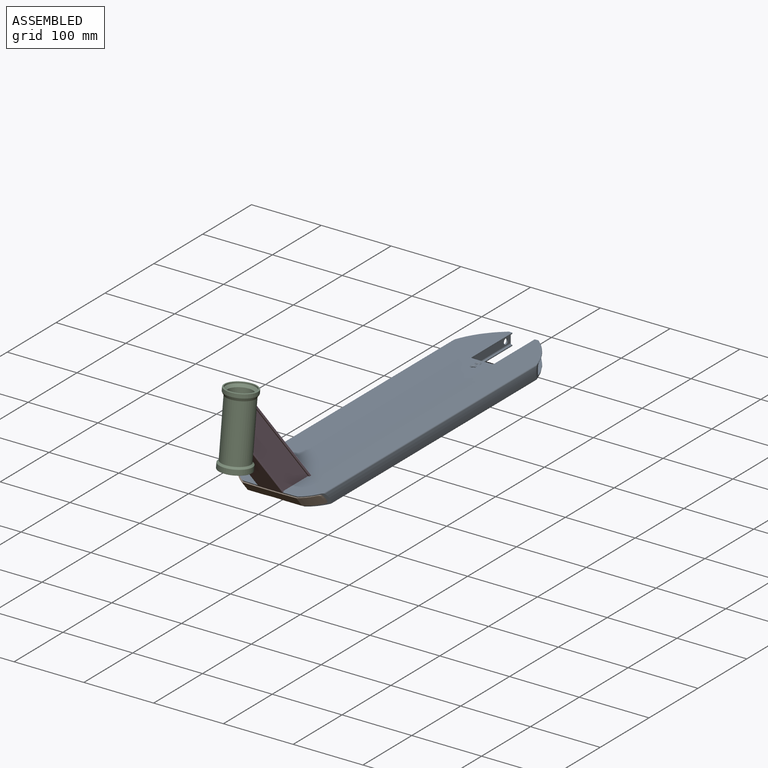
[diagram: assembled view]
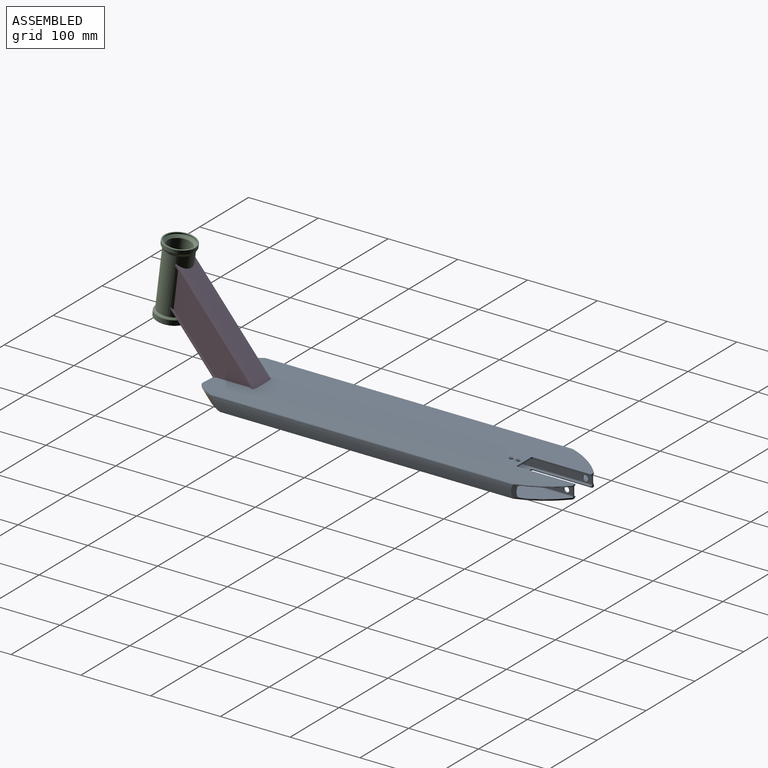
[diagram: assembled view, second angle]
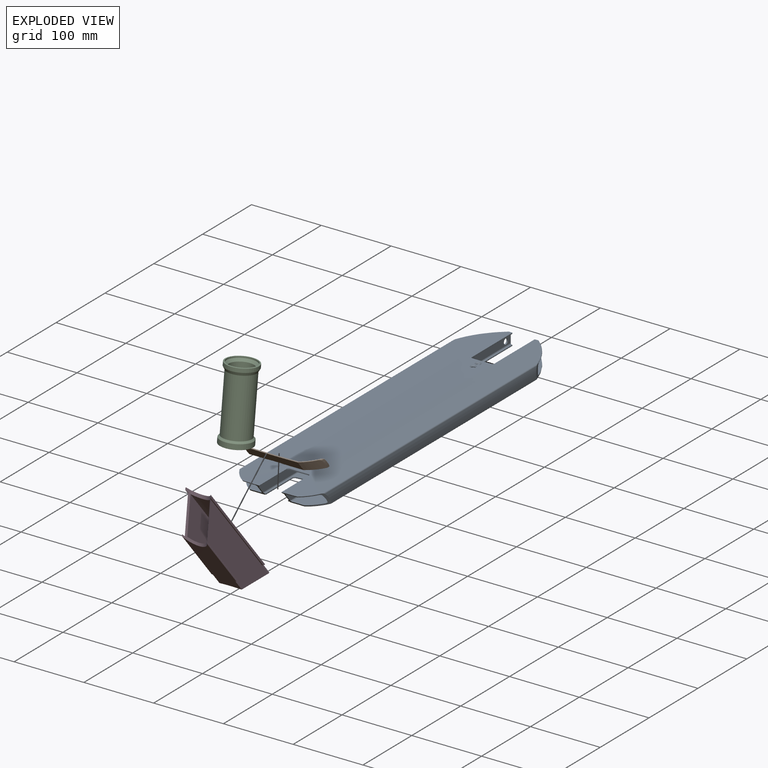
[diagram: exploded view]
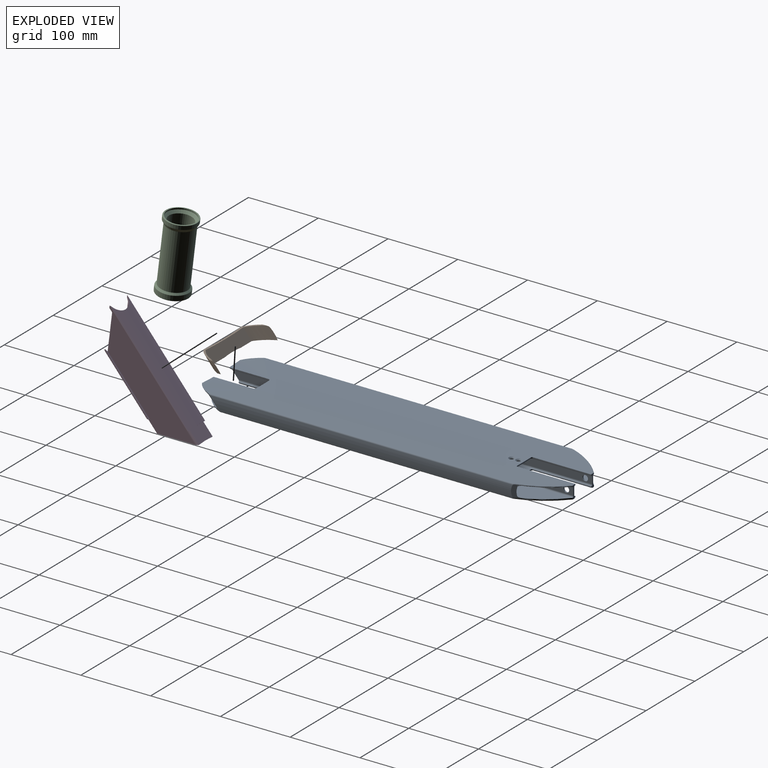
[diagram: exploded view, second angle]
ASSEMBLY  parts=4 mates=3
PART A: 131 faces, bbox 141.6x529.4x45.6 mm
  f0: cylinder r=1000mm len=519.03mm, axis (0,1,0), area 53666.5mm2, adj f15,f16,f20,f43,f44,f65,f70,f72
  f1: cylinder r=1000mm len=517.24mm, axis (0,1,0), area 12252.5mm2, adj f20,f31,f32,f43,f44,f72,f75,f76
  f2: plane 503.22x40.65mm, normal (0,0,-1), area 19366.3mm2, adj f12,f20,f37,f46,f66,f79
  f3: cylinder r=60mm len=433.91mm, axis (0,1,0), area 7414.6mm2, adj f7,f15,f63,f78
  f4: cylinder r=1000mm len=517.6mm, axis (0,1,0), area 16674.2mm2, adj f13,f29,f48,f77,f78
  f5: cylinder r=60mm len=441.59mm, axis (0,1,0), area 5329.7mm2, adj f13,f14,f48,f78
  f6: plane 506.7x35.9mm, normal (0,0,1), area 16455mm2, adj f14,f30,f48,f77,f78
  f7: cylinder r=1mm len=421.07mm, axis (0,1,0), area 596mm2, adj f3,f19,f62,f78
  f8: cylinder r=1000mm len=517.6mm, axis (0,1,0), area 16674.2mm2, adj f18,f20,f35,f47,f79
  f9: plane 506.7x35.9mm, normal (0,0,1), area 16455mm2, adj f17,f20,f36,f47,f79
  f10: cylinder r=60mm len=433.91mm, axis (0,1,0), area 7414.6mm2, adj f12,f16,f68,f79
  f11: cylinder r=60mm len=441.59mm, axis (0,1,0), area 5329.7mm2, adj f17,f18,f47,f79
  f12: cylinder r=1mm len=421.07mm, axis (0,1,0), area 596mm2, adj f2,f10,f67,f79
  f13: cylinder r=2mm len=452.4mm, axis (0,1,0), area 1357.3mm2, adj f4,f5,f48,f78
  f14: cylinder r=2mm len=438.34mm, axis (0,1,0), area 1283.1mm2, adj f5,f6,f48,f78
  f15: cylinder r=2mm len=442.52mm, axis (0,-1,0), area 1307.3mm2, adj f0,f3,f64,f78
  f16: cylinder r=2mm len=442.52mm, axis (0,-1,0), area 1307.3mm2, adj f0,f10,f69,f79
  f17: cylinder r=2mm len=438.34mm, axis (0,1,0), area 1283.1mm2, adj f9,f11,f47,f79
  f18: cylinder r=2mm len=452.4mm, axis (0,1,0), area 1357.3mm2, adj f8,f11,f47,f79
  f19: plane 503.22x40.65mm, normal (0,0,-1), area 19366.3mm2, adj f7,f40,f45,f61,f77,f78
  f20: plane 23.81x19.77mm, normal (0,-0.77,-0.64), area 159.8mm2, adj f0,f1,f2,f8,f9,f21,f22,f23
  f21: cylinder r=200mm len=504.2mm, axis (0,1,0), area 13155.5mm2, adj f20,f38,f39,f41,f42,f45,f46,f71
  f22: cylinder r=200mm len=505.36mm, axis (0,1,0), area 11783.7mm2, adj f20,f33,f34,f41,f42,f71,f73,f74
  f23: plane 515.66x10.45mm, normal (-1,0,0), area 5290.1mm2, adj f20,f35,f36,f56,f81
  f24: plane 503.67x0.04mm, normal (1,0,0), area 21.5mm2, adj f20,f37,f38,f46
  f25: plane 503.67x0.04mm, normal (-1,0,0), area 21.5mm2, adj f39,f40,f45,f77
  f26: plane 515.56x10.19mm, normal (1,0,0), area 5157.3mm2, adj f20,f31,f34,f56,f123
  f27: plane 515.56x10.18mm, normal (-1,0,0), area 5153.4mm2, adj f32,f33,f55,f77,f106
  f28: plane 515.66x10.45mm, normal (1,0,0), area 5290.1mm2, adj f29,f30,f55,f77,f88
  f29: cylinder r=2mm len=517.34mm, axis (0,1,0), area 1600.2mm2, adj f4,f28,f48,f77,f92
  f30: cylinder r=2mm len=506.89mm, axis (0,-1,0), area 1589.1mm2, adj f6,f28,f48,f77,f85
  f31: cylinder r=2mm len=517.24mm, axis (0,1,0), area 1639.2mm2, adj f1,f20,f26,f125
  f32: cylinder r=2mm len=517.24mm, axis (0,1,0), area 1639.2mm2, adj f1,f27,f77,f111
  f33: cylinder r=2mm len=507.02mm, axis (0,1,0), area 1672mm2, adj f22,f27,f77,f101
  f34: cylinder r=2mm len=507.02mm, axis (0,1,0), area 1672.5mm2, adj f20,f22,f26,f121
  f35: cylinder r=2mm len=517.34mm, axis (0,1,0), area 1600.2mm2, adj f8,f20,f23,f47,f82
  f36: cylinder r=2mm len=506.89mm, axis (0,-1,0), area 1589.1mm2, adj f9,f20,f23,f47,f80
  f37: cylinder r=0.5mm len=503.64mm, axis (0,1,0), area 395.4mm2, adj f2,f20,f24,f46
  f38: cylinder r=0.5mm len=504.09mm, axis (0,1,0), area 373.6mm2, adj f20,f21,f24,f46
  f39: cylinder r=0.5mm len=504.09mm, axis (0,1,0), area 373.6mm2, adj f21,f25,f45,f77
  f40: cylinder r=0.5mm len=503.64mm, axis (0,-1,0), area 395.4mm2, adj f19,f25,f45,f77
  f41: plane 55.14x1.5mm, normal (1,0,0), area 81.5mm2, adj f20,f21,f22,f74
  f42: plane 55.15x1.5mm, normal (-1,0,0), area 81.9mm2, adj f21,f22,f73,f77
  f43: plane 56.27x1.5mm, normal (1,0,0), area 83.6mm2, adj f0,f1,f20,f76
  f44: plane 56.27x1.5mm, normal (-1,0,0), area 83.6mm2, adj f0,f1,f75,f77
  f45: plane 18.71x6.3mm, normal (0,1,0), area 49.5mm2, adj f19,f21,f25,f39,f40,f48,f61,f85
  f46: plane 18.71x6.4mm, normal (0,1,0), area 49.6mm2, adj f2,f21,f24,f37,f38,f47,f53,f66
  f47: cylinder r=125mm len=60.89mm, axis (0,0,-1), area 247.9mm2, adj f8,f9,f11,f17,f18,f35,f36,f46
  f48: cylinder r=125mm len=60.89mm, axis (0,0,-1), area 247.9mm2, adj f4,f5,f6,f13,f14,f29,f30,f45
  f49: plane 28x1.79mm, normal (0,1,0), area 36.4mm2, adj f57,f58,f99,f105
  f50: plane 82.9x1.29mm, normal (1,0,0), area 107.3mm2, adj f57,f109,f113,f114
  f51: plane 82.9x1.3mm, normal (-1,0,0), area 108mm2, adj f58,f87,f90,f95
  f52: plane 82.9x1.3mm, normal (-1,0,0), area 108mm2, adj f60,f108,f116,f120
  f53: plane 83x1.3mm, normal (1,0,0), area 108.1mm2, adj f46,f59,f86,f89,f128
  f54: plane 28x1.4mm, normal (0,1,0), area 36.5mm2, adj f59,f60,f98,f124
  f55: cylinder r=4mm len=8mm, axis (1,0,0), area 50.3mm2, adj f27,f28
  f56: cylinder r=4mm len=8mm, axis (1,0,0), area 50.3mm2, adj f23,f26
  f57: cylinder r=2mm len=2mm, axis (0,0,1), area 4.1mm2, adj f49,f50,f104,f110
  f58: cylinder r=2mm len=2mm, axis (0,0,-1), area 4.1mm2, adj f49,f51,f94,f100
  f59: cylinder r=2mm len=2mm, axis (0,0,1), area 4.1mm2, adj f53,f54,f93,f126
  f60: cylinder r=2mm len=2mm, axis (0,0,-1), area 4.1mm2, adj f52,f54,f103,f122
  f61: torus R=124mm, axis (0,0,1), area 111.8mm2, adj f19,f45,f48,f62
  f62: sphere r=1mm, area 0.3mm2, adj f7,f61,f63
  f63: bspline ~21.61x3.57mm, area 5.2mm2, adj f3,f48,f62,f64
  f64: bspline ~4.42x2.54mm, area 4.2mm2, adj f15,f48,f63,f65
  f65: bspline ~75.38x48.93mm, area 109.3mm2, adj f0,f48,f64,f102
  f66: torus R=124mm, axis (0,0,-1), area 111.8mm2, adj f2,f46,f47,f67
  f67: sphere r=1mm, area 0.3mm2, adj f12,f66,f68
  f68: bspline ~21.61x3.58mm, area 5.2mm2, adj f10,f47,f67,f69
  f69: bspline ~4.41x2.54mm, area 4.2mm2, adj f16,f47,f68,f70
  f70: bspline ~75.38x48.93mm, area 109.3mm2, adj f0,f47,f69,f84
  f71: plane 26x1.92mm, normal (0,-1,0), area 39mm2, adj f21,f22,f73,f74
  f72: plane 26x1.59mm, normal (0,-1,0), area 39.1mm2, adj f0,f1,f75,f76
  f73: cylinder r=3mm len=3mm, axis (0,0,-1), area 7.1mm2, adj f21,f22,f42,f71
  f74: cylinder r=3mm len=3mm, axis (0,0,1), area 7mm2, adj f21,f22,f41,f71
  f75: cylinder r=3mm len=3mm, axis (0,0,-1), area 7.1mm2, adj f0,f1,f44,f72
  f76: cylinder r=3mm len=3mm, axis (0,0,1), area 7.1mm2, adj f0,f1,f43,f72
  f77: plane 23.81x19.77mm, normal (0,-0.77,-0.64), area 159.8mm2, adj f0,f1,f4,f6,f19,f21,f22,f25
  f78: cylinder r=50mm len=43.95mm, axis (0,0.64,-0.77), area 217.1mm2, adj f0,f3,f4,f5,f6,f7,f13,f14
  f79: cylinder r=50mm len=43.95mm, axis (0,0.64,-0.77), area 217.1mm2, adj f0,f2,f8,f9,f10,f11,f12,f16
  f80: torus R=2.1mm, axis (0,-1,0), area 0.5mm2, adj f36,f46,f47,f81
  f81: cylinder r=0.1mm len=10.45mm, axis (0,0,-1), area 1.6mm2, adj f23,f46,f80,f82
  f82: torus R=2.1mm, axis (0,-1,0), area 0.5mm2, adj f35,f46,f47,f81,f83
  f83: cylinder r=0.1mm len=0.47mm, axis (0,0,-1), area 0mm2, adj f46,f47,f82,f84
  f84: bspline ~1.97x1.03mm, area 0.2mm2, adj f46,f70,f83,f86
  f85: torus R=2.1mm, axis (0,-1,0), area 0.5mm2, adj f30,f45,f48,f88
  f86: torus R=1000.1mm, axis (0,-1,0), area 0.7mm2, adj f0,f46,f53,f84,f89
  f87: cylinder r=0.1mm len=1.4mm, axis (0,0,-1), area 0.2mm2, adj f21,f45,f51,f90,f91
  f88: cylinder r=0.1mm len=10.45mm, axis (0,0,1), area 1.6mm2, adj f28,f45,f85,f92
  f89: cylinder r=0.1mm len=83mm, axis (0,1,0), area 12.9mm2, adj f0,f53,f86,f93
  f90: cylinder r=0.1mm len=83mm, axis (0,1,0), area 12.4mm2, adj f21,f51,f87,f94
  f91: sphere r=0.1mm, area 0mm2, adj f87,f95,f96
  f92: torus R=2.1mm, axis (0,-1,0), area 0.5mm2, adj f29,f45,f48,f88,f97
  f93: bspline ~2.57x2.57mm, area 0.5mm2, adj f0,f59,f89,f98
  f94: bspline ~2.57x2.22mm, area 0.5mm2, adj f21,f58,f90,f99
  f95: cylinder r=0.1mm len=82.9mm, axis (0,1,0), area 13.7mm2, adj f22,f51,f91,f100
  f96: torus R=199.9mm, axis (0,-1,0), area 0mm2, adj f22,f45,f91,f101
  f97: cylinder r=0.1mm len=0.47mm, axis (0,0,-1), area 0mm2, adj f45,f48,f92,f102
  f98: torus R=1000.1mm, axis (0,1,0), area 4.4mm2, adj f0,f54,f93,f103
  f99: torus R=200.1mm, axis (0,1,0), area 4.4mm2, adj f21,f49,f94,f104
  f100: bspline ~2.57x2.57mm, area 0.5mm2, adj f22,f58,f95,f105
  f101: torus R=2.1mm, axis (0,-1,0), area 0.5mm2, adj f33,f45,f96,f106
  f102: bspline ~1.6x1.16mm, area 0.2mm2, adj f45,f65,f97,f107
  f103: bspline ~2.57x2.57mm, area 0.5mm2, adj f0,f60,f98,f108
  f104: bspline ~2.57x2.57mm, area 0.5mm2, adj f21,f57,f99,f109
  f105: torus R=199.9mm, axis (0,1,0), area 4.4mm2, adj f22,f49,f100,f110
  f106: cylinder r=0.1mm len=10.18mm, axis (0,0,-1), area 1.6mm2, adj f27,f45,f101,f111
  f107: torus R=1000.1mm, axis (0,-1,0), area 0.7mm2, adj f0,f45,f102,f112
  f108: cylinder r=0.1mm len=82.9mm, axis (0,1,0), area 12.9mm2, adj f0,f52,f103,f112
  f109: cylinder r=0.1mm len=83mm, axis (0,1,0), area 12.4mm2, adj f21,f50,f104,f113
  f110: bspline ~2.57x2.57mm, area 0.5mm2, adj f22,f57,f105,f114
  f111: torus R=2.1mm, axis (0,-1,0), area 0.5mm2, adj f32,f45,f106,f115
  f112: sphere r=0.1mm, area 0mm2, adj f107,f108,f116
  f113: cylinder r=0.1mm len=1.4mm, axis (0,0,1), area 0.2mm2, adj f21,f46,f50,f109,f117
  f114: cylinder r=0.1mm len=82.9mm, axis (0,1,0), area 13.7mm2, adj f22,f50,f110,f117
  f115: torus R=999.9mm, axis (0,-1,0), area 0mm2, adj f1,f45,f111,f118
  f116: cylinder r=0.1mm len=1.3mm, axis (0,0,-1), area 0.2mm2, adj f45,f52,f112,f118
  f117: sphere r=0.1mm, area 0mm2, adj f113,f114,f119
  f118: sphere r=0.1mm, area 0mm2, adj f115,f116,f120
  f119: torus R=199.9mm, axis (0,-1,0), area 0mm2, adj f22,f46,f117,f121
  f120: cylinder r=0.1mm len=82.9mm, axis (0,1,0), area 13.2mm2, adj f1,f52,f118,f122
  f121: torus R=2.1mm, axis (0,-1,0), area 0.5mm2, adj f34,f46,f119,f123
  f122: bspline ~2.57x2.22mm, area 0.5mm2, adj f1,f60,f120,f124
  f123: cylinder r=0.1mm len=10.19mm, axis (0,0,1), area 1.6mm2, adj f26,f46,f121,f125
  f124: torus R=999.9mm, axis (0,1,0), area 4.4mm2, adj f1,f54,f122,f126
  f125: torus R=2.1mm, axis (0,-1,0), area 0.5mm2, adj f31,f46,f123,f127
  f126: bspline ~2.57x2.57mm, area 0.5mm2, adj f1,f59,f124,f128
  f127: torus R=999.9mm, axis (0,-1,0), area 0mm2, adj f1,f46,f125,f128
  f128: cylinder r=0.1mm len=83mm, axis (0,1,0), area 13.2mm2, adj f1,f46,f53,f126,f127
  f129: bspline ~8.2x8.19mm, area 44.8mm2, adj f0,f1
  f130: bspline ~8.2x8.19mm, area 44.8mm2, adj f0,f1
PART B: 15 faces, bbox 117x39x38.3 mm
  f0: cylinder r=60mm len=16.01mm, axis (0,1,0), area 69.5mm2, adj f1,f6,f11,f14
  f1: plane 42x26.13mm, normal (0,0,1), area 130.5mm2, adj f0,f2,f6,f7,f10,f11
  f2: cylinder r=200mm len=32mm, axis (0,1,0), area 83.6mm2, adj f1,f3,f7,f8,f10
  f3: plane 42x26.13mm, normal (0,0,1), area 130.9mm2, adj f2,f4,f8,f9,f10,f12
  f4: cylinder r=60mm len=16mm, axis (0,1,0), area 69.5mm2, adj f3,f9,f12,f13
  f5: cylinder r=1000mm len=112.23mm, axis (0,1,0), area 327mm2, adj f6,f7,f8,f9,f10,f11,f12,f13
  f6: cylinder r=50mm len=38.28mm, axis (0,-0.64,-0.77), area 539.1mm2, adj f0,f1,f5,f7,f14
  f7: plane 38.5x14.57mm, normal (0,0.77,-0.64), area 698.5mm2, adj f1,f2,f5,f6,f8
  f8: plane 38.53x14.55mm, normal (0,0.77,-0.64), area 697.9mm2, adj f2,f3,f5,f7,f9
  f9: cylinder r=50mm len=38.24mm, axis (0,-0.64,-0.77), area 538mm2, adj f3,f4,f5,f8,f13
  f10: plane 78x14.63mm, normal (0,-0.77,0.64), area 1414.8mm2, adj f1,f2,f3,f5,f11,f12
  f11: cylinder r=50mm len=35.85mm, axis (0,-0.64,-0.77), area 505.6mm2, adj f0,f1,f5,f10,f14
  f12: cylinder r=50mm len=35.83mm, axis (0,-0.64,-0.77), area 505.3mm2, adj f3,f4,f5,f10,f13
  f13: cylinder r=2mm len=10.26mm, axis (0,-1,0), area 14.9mm2, adj f4,f5,f9,f12
  f14: cylinder r=2mm len=10.25mm, axis (0,-1,0), area 14.9mm2, adj f0,f5,f6,f11
PART C: 18 faces, bbox 48.7x48.7x102 mm
  f0: cylinder r=20mm len=81.66mm, axis (0,0,-1), area 10261.6mm2, adj f15,f17
  f1: cylinder r=17mm len=89mm, axis (0,0,-1), area 9506.5mm2, adj f5,f10
  f2: plane 44x44mm, normal (0,0,-1), area 200.3mm2, adj f4,f16
  f3: cylinder r=22.5mm len=45mm, axis (0,0,1), area 960.3mm2, adj f14,f16
  f4: cylinder r=20.5mm len=41mm, axis (0,0,-1), area 515.2mm2, adj f2,f5
  f5: cone r=17mm half-angle=45deg, axis (0,0,-1), area 583.1mm2, adj f1,f4
  f6: cone r=20mm half-angle=45deg, axis (0,0,-1), area 416.8mm2, adj f14,f15
  f7: plane 44x44mm, normal (0,0,1), area 200.3mm2, adj f9,f13
  f8: cylinder r=22.5mm len=45mm, axis (0,0,-1), area 711.9mm2, adj f12,f13
  f9: cylinder r=20.5mm len=41mm, axis (0,0,1), area 257.6mm2, adj f7,f10
  f10: cone r=17mm half-angle=45deg, axis (0,0,1), area 583.1mm2, adj f1,f9
  f11: cone r=22.5mm half-angle=30deg, axis (0,0,1), area 631.8mm2, adj f12,f17
  f12: torus R=22mm, axis (0,0,-1), area 37mm2, adj f8,f11
  f13: torus R=22mm, axis (0,0,1), area 110.1mm2, adj f7,f8
  f14: torus R=22mm, axis (0,0,1), area 55.4mm2, adj f3,f6
  f15: torus R=20.5mm, axis (0,0,1), area 49.5mm2, adj f0,f6
  f16: torus R=22mm, axis (0,0,1), area 110.1mm2, adj f2,f3
  f17: torus R=20.5mm, axis (0,0,1), area 32.9mm2, adj f0,f11
PART D: 35 faces, bbox 36.1x60x194.5 mm
  f0: plane 113.95x35mm, normal (0,-1,0), area 3556.7mm2, adj f1,f2,f19,f20,f23,f28,f29,f32
  f1: plane 185.19x45mm, normal (1,0,0), area 6036.1mm2, adj f0,f8,f12,f13,f19,f20,f21,f22
  f2: plane 185.19x42mm, normal (-1,0,0), area 6032.1mm2, adj f0,f9,f17,f18,f19,f23,f32
  f3: cylinder r=100mm len=182.06mm, axis (0,0,-1), area 4978.9mm2, adj f4,f6,f19,f32
  f4: plane 181.87x39mm, normal (1,0,0), area 5745.7mm2, adj f3,f5,f19,f32
  f5: plane 112.78x28mm, normal (0,1,0), area 2995.2mm2, adj f4,f6,f19,f32
  f6: plane 181.87x39mm, normal (-1,0,0), area 5745.7mm2, adj f3,f5,f19,f32
  f7: plane 26x20.6mm, normal (0,1,0), area 526.1mm2, adj f8,f9,f25,f32
  f8: cylinder r=3mm len=20.62mm, axis (0,0,1), area 93.6mm2, adj f1,f7,f25,f32
  f9: cylinder r=3mm len=23.13mm, axis (0,0,1), area 97.9mm2, adj f2,f7,f24,f32
  f10: plane 97.04x1mm, normal (-1,0,0), area 96.2mm2, adj f19,f23,f27,f28
  f11: plane 97x1mm, normal (1,0,0), area 96.1mm2, adj f19,f20,f29,f30
  f12: plane 96.62x1.55mm, normal (0,1,0), area 142.4mm2, adj f1,f19,f20,f30
  f13: plane 167.48x1.55mm, normal (0,-1,0), area 248.7mm2, adj f1,f19,f21,f31
  f14: plane 172.58x1.66mm, normal (1,0,0), area 284.5mm2, adj f19,f21,f31,f33
  f15: cylinder r=100mm len=172.14mm, axis (0,0,-1), area 5648.3mm2, adj f19,f25,f33,f34
  f16: plane 172.62x1.66mm, normal (-1,0,0), area 284.6mm2, adj f19,f24,f26,f34
  f17: plane 167.52x1.55mm, normal (0,-1,0), area 248.7mm2, adj f2,f19,f24,f26
  f18: plane 96.66x1.55mm, normal (0,1,0), area 142.4mm2, adj f2,f19,f23,f27
  f19: cylinder r=20mm len=59.9mm, axis (0,0.73,-0.68), area 712.5mm2, adj f0,f1,f2,f3,f4,f5,f6,f10
  f20: plane 2x2mm, normal (0,-0.64,0.77), area 5.1mm2, adj f0,f1,f11,f12,f29,f30
  f21: plane 3x2.52mm, normal (0,-0.64,0.77), area 7.6mm2, adj f1,f13,f14,f22,f31,f33
  f22: plane 1.55x0.04mm, normal (0,-1,0), area 0.1mm2, adj f1,f21,f25,f33
  f23: plane 2x2mm, normal (0,-0.64,0.77), area 5.1mm2, adj f0,f2,f10,f18,f27,f28
  f24: plane 5.1x3.1mm, normal (0,-0.64,0.77), area 10.1mm2, adj f9,f16,f17,f25,f26,f34
  f25: plane 35.09x4.63mm, normal (0,0,1), area 41.1mm2, adj f1,f7,f8,f15,f22,f24,f33,f34
  f26: cylinder r=0.5mm len=169.68mm, axis (0,0,-1), area 132.4mm2, adj f16,f17,f19,f24
  f27: cylinder r=0.5mm len=97.54mm, axis (0,0,-1), area 76.3mm2, adj f10,f18,f19,f23
  f28: cylinder r=0.5mm len=95.27mm, axis (0,0,-1), area 74mm2, adj f0,f10,f19,f23
  f29: cylinder r=0.5mm len=95.23mm, axis (0,0,-1), area 74mm2, adj f0,f11,f19,f20
  f30: cylinder r=0.5mm len=97.5mm, axis (0,0,-1), area 76.2mm2, adj f11,f12,f19,f20
  f31: cylinder r=0.5mm len=169.64mm, axis (0,0,-1), area 132.4mm2, adj f13,f14,f19,f21
  f32: cylinder r=200mm len=45.69mm, axis (0,0.77,0.64), area 426mm2, adj f0,f1,f2,f3,f4,f5,f6,f7
  f33: cylinder r=1mm len=173.48mm, axis (0,0,-1), area 241.7mm2, adj f14,f15,f19,f21,f22,f25
  f34: cylinder r=1mm len=173.48mm, axis (0,0,-1), area 241.7mm2, adj f15,f16,f19,f24,f25
PLACE A at identity fixed
PLACE B rot(axis=(0,-1,0),180deg) t=(-0.5,-490.96,18.06)mm
PLACE C rot(axis=(-0.99,0.01,0.16),7.1deg) t=(0,-589.24,80.94)mm fixed
PLACE D rot(axis=(0,-0.94,-0.34),180deg) t=(0,-608.2,125.11)mm
MATE cylindrical C.f0 <-> D.f19  axis (0,-0.12,-0.99) through (0,-589.21,81.15)mm
MATE fastened A.f9 <-> B.f1  axis (0,0,1) through (-39,-505.32,2.5)mm
MATE fastened D.f0 <-> A.f77  axis (0,-0.77,-0.64) through (16,-518.6,18.33)mm
